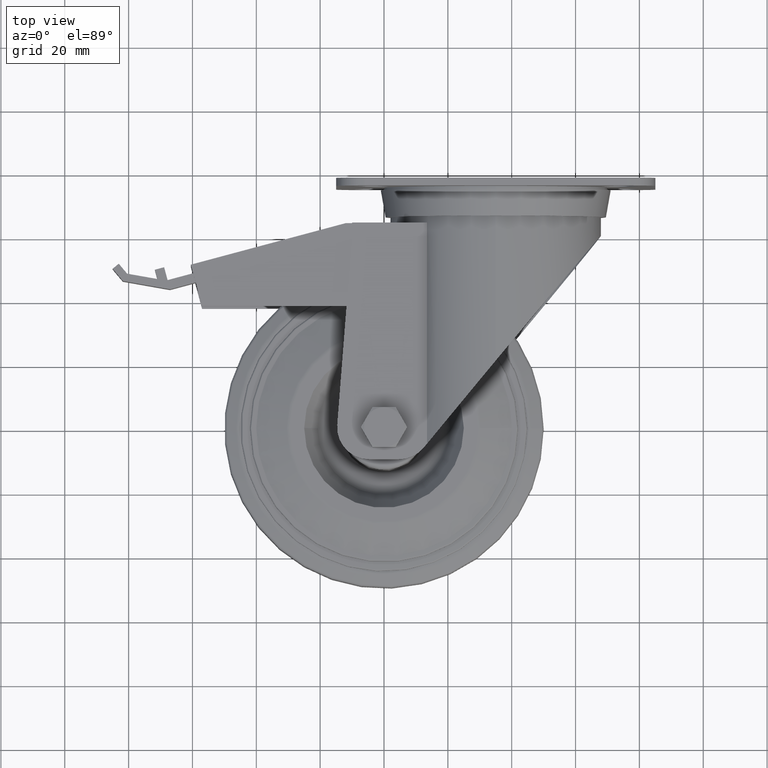
[diagram: clean part render]
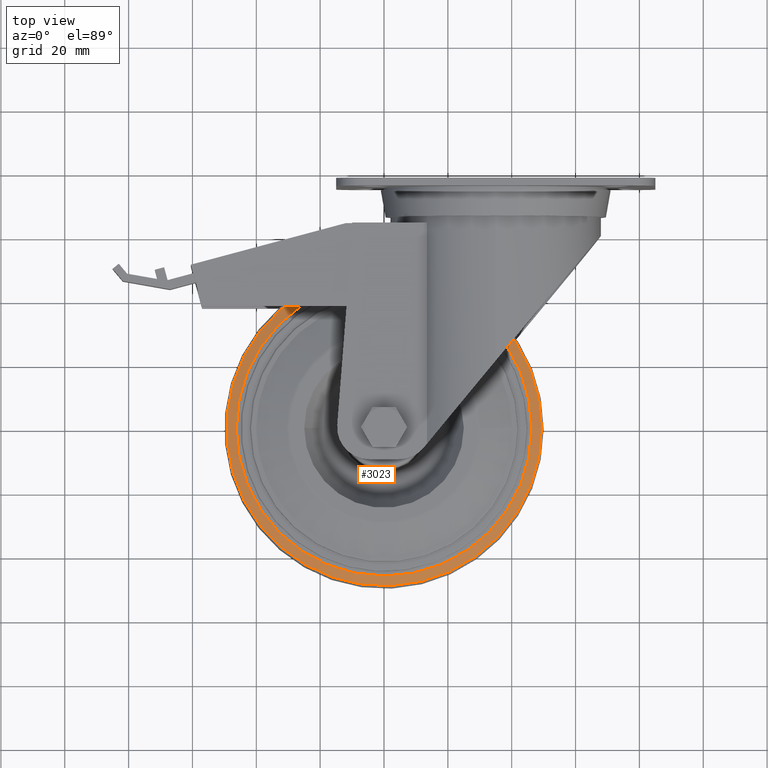
[diagram: same view with one face highlighted and labeled with its STEP entity id]
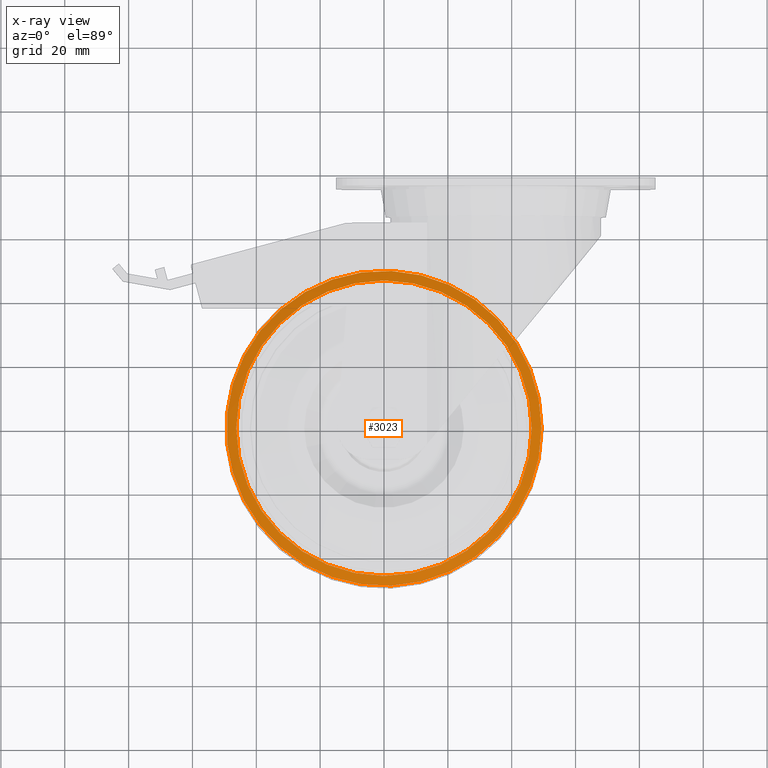
[diagram: x-ray of the same camera — body ghosted, the highlighted face saturated]
A machine part, top view. The second image highlights one B-rep face of the part: STEP entity #3023.
The next image is the same camera in x-ray: the body ghosted, the highlighted face saturated — about 0% of this face is hidden behind the body in this view.
In plain terms, the highlighted conical surface has half-angle 71 deg.
Its self-contained STEP definition (entity closure, byte-faithful):
#418=LINE('',#5317,#612);
#612=VECTOR('',#4272,49.3255681544572);
#804=FACE_OUTER_BOUND('',#1017,.T.);
#1017=EDGE_LOOP('',(#2687,#2688,#2689,#2690));
#1186=CIRCLE('',#3442,49.3255681544572);
#1187=CIRCLE('',#3444,46.2830983914789);
#1519=VERTEX_POINT('',#5312);
#1520=VERTEX_POINT('',#5316);
#1914=EDGE_CURVE('',#1519,#1519,#1186,.T.);
#1915=EDGE_CURVE('',#1519,#1520,#418,.T.);
#1916=EDGE_CURVE('',#1520,#1520,#1187,.T.);
#2687=ORIENTED_EDGE('',*,*,#1914,.F.);
#2688=ORIENTED_EDGE('',*,*,#1915,.T.);
#2689=ORIENTED_EDGE('',*,*,#1916,.T.);
#2690=ORIENTED_EDGE('',*,*,#1915,.F.);
#2870=CONICAL_SURFACE('',#3443,49.3255681544572,1.23918376891598);
#3023=ADVANCED_FACE('',(#804),#2870,.T.);
#3442=AXIS2_PLACEMENT_3D('',#5314,#4268,#4269);
#3443=AXIS2_PLACEMENT_3D('',#5315,#4270,#4271);
#3444=AXIS2_PLACEMENT_3D('',#5318,#4273,#4274);
#4268=DIRECTION('center_axis',(-5.71914493359824E-17,0.,-1.));
#4269=DIRECTION('ref_axis',(-1.,0.,5.71914493359824E-17));
#4270=DIRECTION('center_axis',(-5.71914493359824E-17,0.,-1.));
#4271=DIRECTION('ref_axis',(-1.,0.,5.71914493359824E-17));
#4272=DIRECTION('',(-0.945518575599319,1.15792629714207E-16,0.325568154457151));
#4273=DIRECTION('center_axis',(-5.71914493359824E-17,0.,-1.));
#4274=DIRECTION('ref_axis',(-1.,0.,5.71914493359824E-17));
#5312=CARTESIAN_POINT('',(49.3255681544572,-6.04063991564806E-15,8.345673241909));
#5314=CARTESIAN_POINT('Origin',(4.77301148389302E-16,0.,8.345673241909));
#5315=CARTESIAN_POINT('Origin',(4.77301148389302E-16,0.,8.345673241909));
#5316=CARTESIAN_POINT('',(46.2830983914789,-5.66804482997466E-15,9.39327959390127));
#5317=CARTESIAN_POINT('',(49.3255681544572,-6.04063991564806E-15,8.345673241909));
#5318=CARTESIAN_POINT('Origin',(5.37215273993323E-16,0.,9.39327959390129));